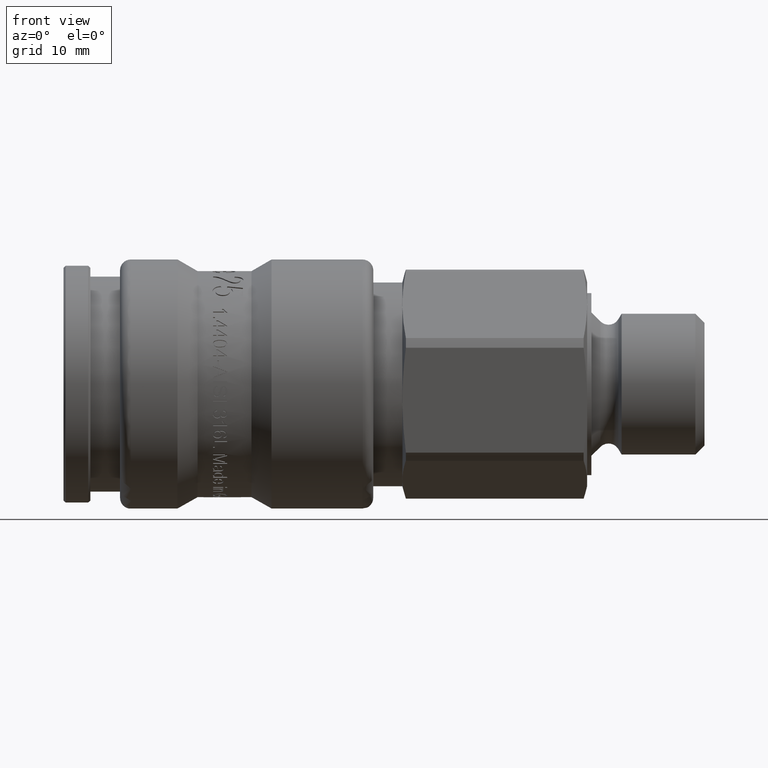
[diagram: clean part render]
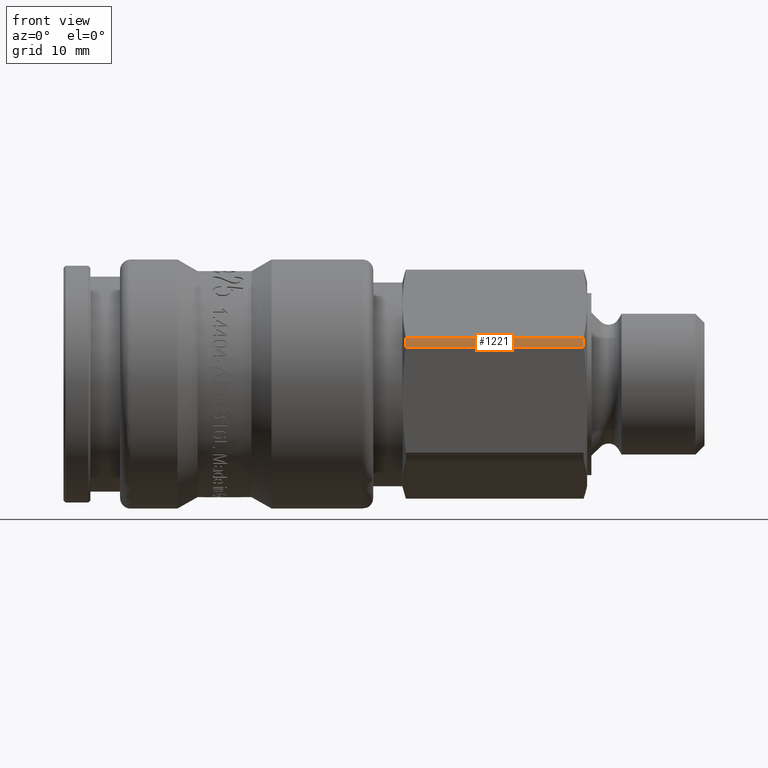
[diagram: same view with one face highlighted and labeled with its STEP entity id]
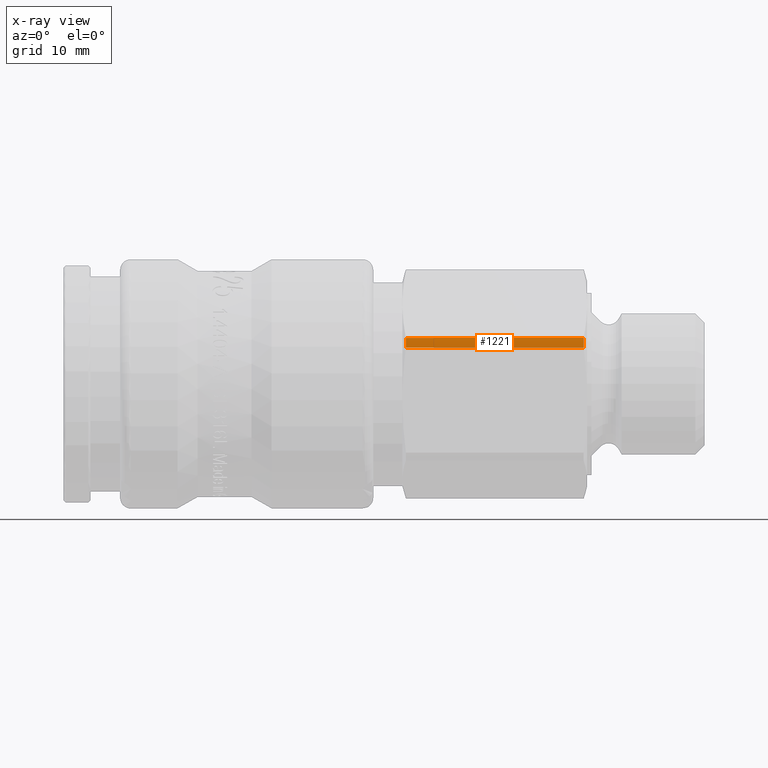
[diagram: x-ray of the same camera — body ghosted, the highlighted face saturated]
A machine part, front view. The second image highlights one B-rep face of the part: STEP entity #1221.
The next image is the same camera in x-ray: the body ghosted, the highlighted face saturated — about 0% of this face is hidden behind the body in this view.
In plain terms, the highlighted cylindrical surface (partial cylindrical patch) has radius 10.7 mm, axis along (-1, 0, 0).
Its self-contained STEP definition (entity closure, byte-faithful):
#333=CARTESIAN_POINT('',(31.77823776072815,-9.807118095572715,4.279069368389615));
#334=VERTEX_POINT('',#333);
#348=CARTESIAN_POINT('',(48.278460969082673,-9.807118095572713,4.279069368389612));
#349=VERTEX_POINT('',#348);
#350=CARTESIAN_POINT('',(48.278460969082666,-9.807118095572717,4.27906936838961));
#351=DIRECTION('',(-1.0,0.0,0.0));
#352=VECTOR('',#351,16.500223208354519);
#353=LINE('',#350,#352);
#354=EDGE_CURVE('',#349,#334,#353,.T.);
#377=CARTESIAN_POINT('',(48.278460969082673,-10.155093129443589,3.371065637499162));
#378=VERTEX_POINT('',#377);
#394=CARTESIAN_POINT('',(31.77823776072815,-10.155093129443593,3.371065637499162));
#395=VERTEX_POINT('',#394);
#396=CARTESIAN_POINT('',(31.778237760728146,-10.155093129443591,3.371065637499167));
#397=DIRECTION('',(1.0,0.0,0.0));
#398=VECTOR('',#397,16.500223208354519);
#399=LINE('',#396,#398);
#400=EDGE_CURVE('',#395,#378,#399,.T.);
#721=CARTESIAN_POINT('',(31.77823776072815,0.0,0.0));
#722=DIRECTION('',(-1.0,0.0,0.0));
#723=DIRECTION('',(0.0,0.357852567074513,0.933778100106327));
#724=AXIS2_PLACEMENT_3D('',#721,#722,#723);
#725=CIRCLE('',#724,10.700000000000003);
#726=EDGE_CURVE('',#395,#334,#725,.T.);
#1198=CARTESIAN_POINT('',(48.278460969082673,0.0,0.0));
#1199=DIRECTION('',(-1.0,0.0,0.0));
#1200=DIRECTION('',(0.0,0.357852567074513,0.933778100106327));
#1201=AXIS2_PLACEMENT_3D('',#1198,#1199,#1200);
#1202=CIRCLE('',#1201,10.700000000000001);
#1203=EDGE_CURVE('',#378,#349,#1202,.T.);
#1210=CARTESIAN_POINT('',(40.028349364905409,0.0,0.0));
#1211=DIRECTION('',(-1.0,0.0,0.0));
#1212=DIRECTION('',(0.0,0.357852567074513,0.933778100106327));
#1213=AXIS2_PLACEMENT_3D('',#1210,#1211,#1212);
#1214=CYLINDRICAL_SURFACE('',#1213,10.700000000000003);
#1215=ORIENTED_EDGE('',*,*,#354,.T.);
#1216=ORIENTED_EDGE('',*,*,#726,.F.);
#1217=ORIENTED_EDGE('',*,*,#400,.T.);
#1218=ORIENTED_EDGE('',*,*,#1203,.T.);
#1219=EDGE_LOOP('',(#1215,#1216,#1217,#1218));
#1220=FACE_OUTER_BOUND('',#1219,.T.);
#1221=ADVANCED_FACE('',(#1220),#1214,.T.);